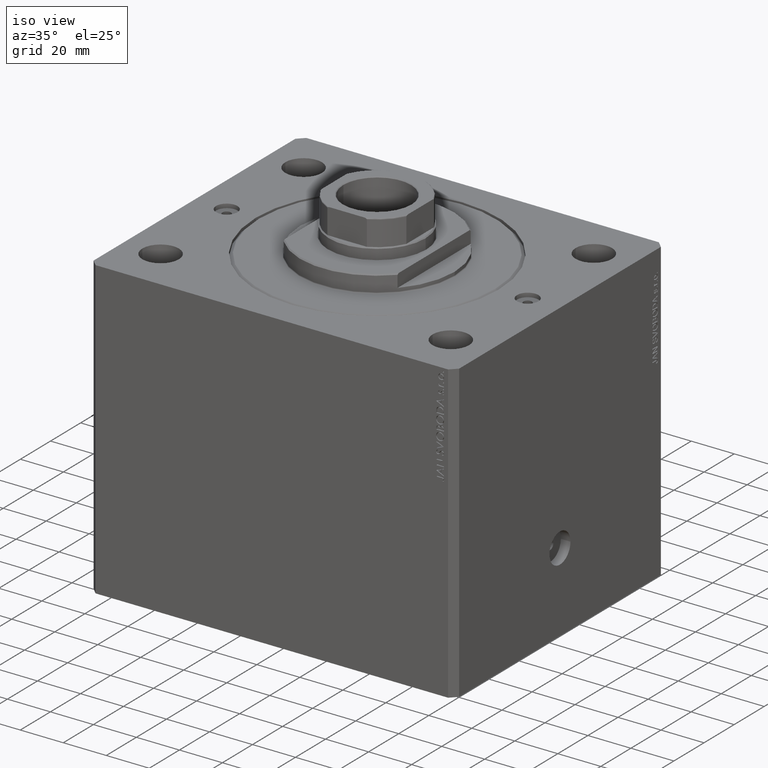
[diagram: clean part render]
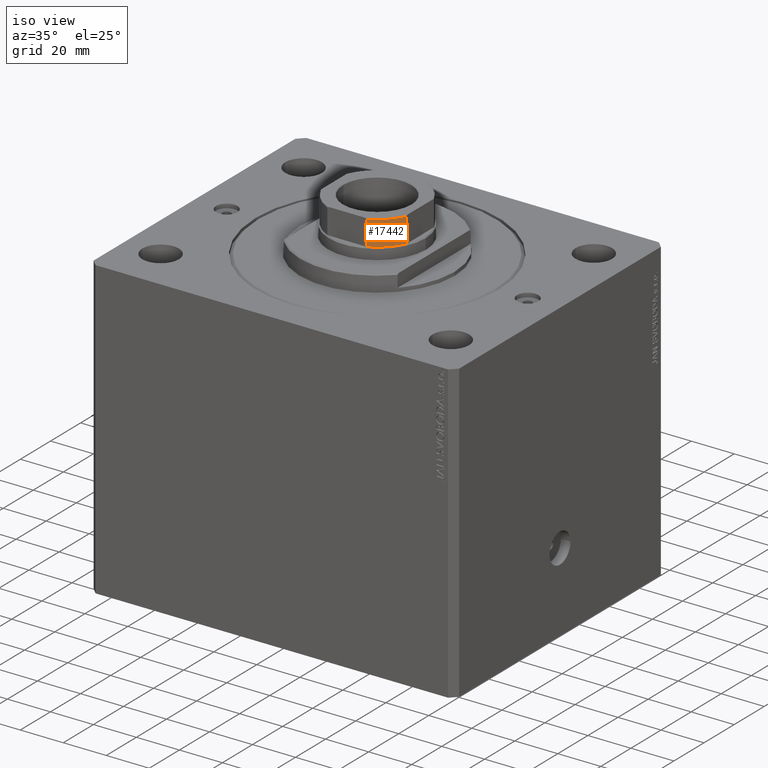
[diagram: same view with one face highlighted and labeled with its STEP entity id]
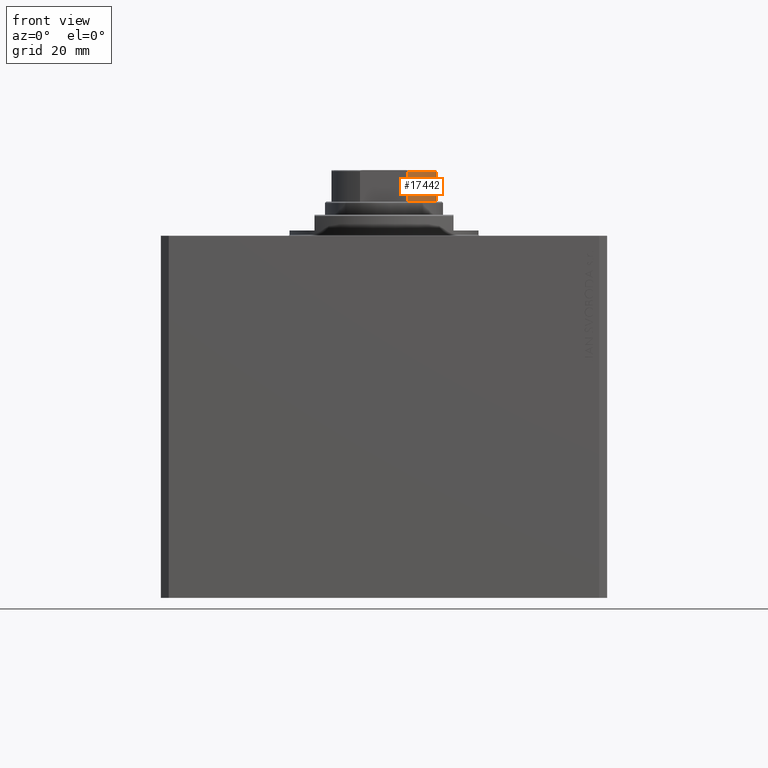
[diagram: same view with one face highlighted and labeled with its STEP entity id]
A machine part, iso view. The second image highlights one B-rep face of the part: STEP entity #17442.
A second angle (front view) of the same face is appended — the face is thin or edge-on in the first view.
In plain terms, the highlighted cylindrical surface (partial cylindrical patch) has radius 22 mm, axis along (0, 0, 1).
Its self-contained STEP definition (entity closure, byte-faithful):
#252 = DIRECTION ( 'NONE',  ( -0.000000000000000000, -0.000000000000000000, 1.000000000000000000 ) ) ;
#1387 = ORIENTED_EDGE ( 'NONE', *, *, #15972, .T. ) ;
#2060 = AXIS2_PLACEMENT_3D ( 'NONE', #46833, #252, #28676 ) ;
#2193 = VERTEX_POINT ( 'NONE', #8382 ) ;
#3076 = DIRECTION ( 'NONE',  ( -0.000000000000000000, -0.000000000000000000, 1.000000000000000000 ) ) ;
#4066 = DIRECTION ( 'NONE',  ( 0.000000000000000000, -0.000000000000000000, -1.000000000000000000 ) ) ;
#4803 = AXIS2_PLACEMENT_3D ( 'NONE', #21519, #4066, #11002 ) ;
#5747 = VECTOR ( 'NONE', #38098, 1000.000000000000000 ) ;
#8382 = CARTESIAN_POINT ( 'NONE',  ( 19.99999999999999289, -9.165151389911693869, 133.6000000000000227 ) ) ;
#10594 = CIRCLE ( 'NONE', #22789, 22.00000000000002132 ) ;
#10949 = CARTESIAN_POINT ( 'NONE',  ( 9.165151389911676105, -20.00000000000000000, -0.001000000000001000089 ) ) ;
#11002 = DIRECTION ( 'NONE',  ( 1.000000000000000000, 0.000000000000000000, 0.000000000000000000 ) ) ;
#11211 = FACE_OUTER_BOUND ( 'NONE', #12654, .T. ) ;
#11288 = CARTESIAN_POINT ( 'NONE',  ( 9.165151389911676105, -20.00000000000000000, 122.1000000000000369 ) ) ;
#11472 = VECTOR ( 'NONE', #3076, 1000.000000000000000 ) ;
#12654 = EDGE_LOOP ( 'NONE', ( #1387, #42951, #36016, #30473 ) ) ;
#15555 = VERTEX_POINT ( 'NONE', #33987 ) ;
#15972 = EDGE_CURVE ( 'NONE', #15555, #2193, #27357, .T. ) ;
#17442 = ADVANCED_FACE ( 'NONE', ( #11211 ), #17930, .T. ) ;
#17930 = CYLINDRICAL_SURFACE ( 'NONE', #2060, 22.00000000000000000 ) ;
#18041 = DIRECTION ( 'NONE',  ( 0.000000000000000000, 0.000000000000000000, 1.000000000000000000 ) ) ;
#21519 = CARTESIAN_POINT ( 'NONE',  ( 0.000000000000000000, 0.000000000000000000, 133.6000000000000227 ) ) ;
#22789 = AXIS2_PLACEMENT_3D ( 'NONE', #39785, #18041, #32603 ) ;
#24590 = LINE ( 'NONE', #10949, #11472 ) ;
#24922 = EDGE_CURVE ( 'NONE', #33944, #35762, #24590, .T. ) ;
#27357 = LINE ( 'NONE', #37870, #5747 ) ;
#28676 = DIRECTION ( 'NONE',  ( 1.000000000000000000, 0.000000000000000000, 0.000000000000000000 ) ) ;
#30473 = ORIENTED_EDGE ( 'NONE', *, *, #35242, .T. ) ;
#32603 = DIRECTION ( 'NONE',  ( 1.000000000000000000, 0.000000000000000000, 0.000000000000000000 ) ) ;
#33944 = VERTEX_POINT ( 'NONE', #11288 ) ;
#33987 = CARTESIAN_POINT ( 'NONE',  ( 19.99999999999999289, -9.165151389911693869, 122.1000000000000369 ) ) ;
#35242 = EDGE_CURVE ( 'NONE', #33944, #15555, #10594, .T. ) ;
#35762 = VERTEX_POINT ( 'NONE', #38231 ) ;
#36016 = ORIENTED_EDGE ( 'NONE', *, *, #24922, .F. ) ;
#37870 = CARTESIAN_POINT ( 'NONE',  ( 19.99999999999999289, -9.165151389911693869, -0.001000000000001000089 ) ) ;
#38098 = DIRECTION ( 'NONE',  ( -0.000000000000000000, -0.000000000000000000, 1.000000000000000000 ) ) ;
#38231 = CARTESIAN_POINT ( 'NONE',  ( 9.165151389911676105, -20.00000000000000000, 133.6000000000000227 ) ) ;
#39785 = CARTESIAN_POINT ( 'NONE',  ( 0.000000000000000000, 0.000000000000000000, 122.1000000000000085 ) ) ;
#42951 = ORIENTED_EDGE ( 'NONE', *, *, #43795, .T. ) ;
#43795 = EDGE_CURVE ( 'NONE', #2193, #35762, #45213, .T. ) ;
#45213 = CIRCLE ( 'NONE', #4803, 22.00000000000000000 ) ;
#46833 = CARTESIAN_POINT ( 'NONE',  ( 0.000000000000000000, 0.000000000000000000, -0.001000000000001000089 ) ) ;